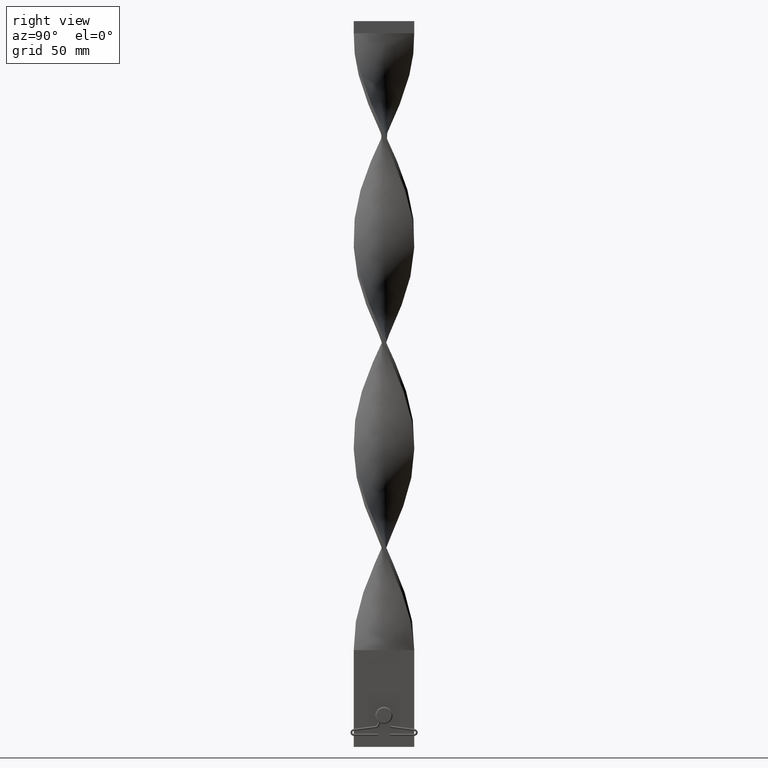
[diagram: clean part render]
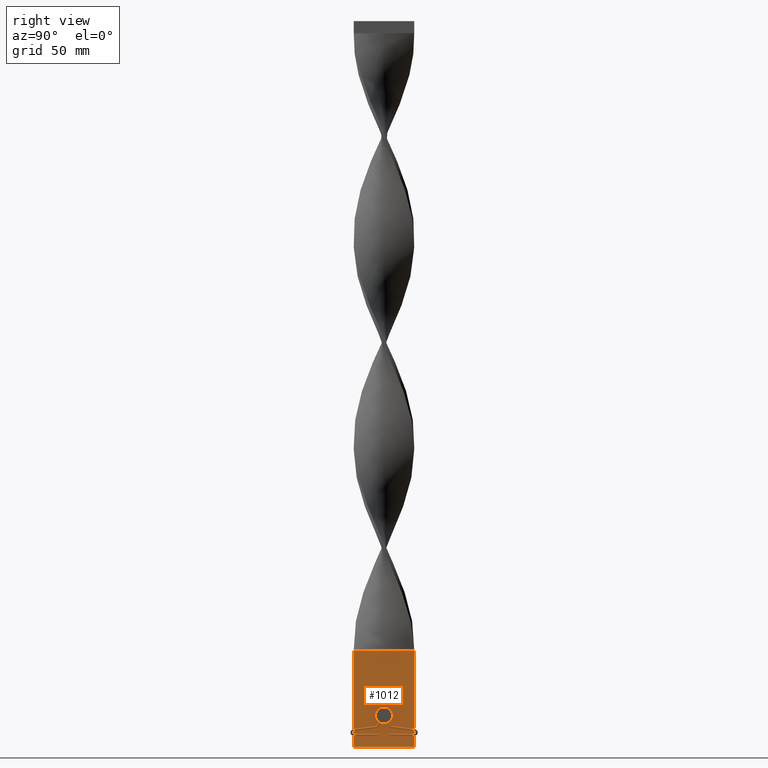
[diagram: same view with one face highlighted and labeled with its STEP entity id]
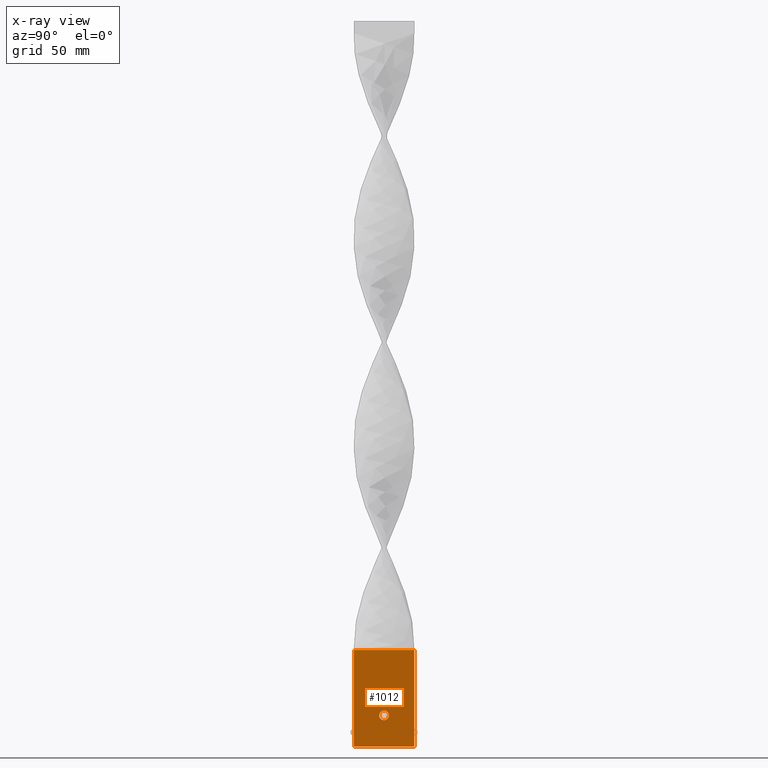
[diagram: x-ray of the same camera — body ghosted, the highlighted face saturated]
A machine part, right view. The second image highlights one B-rep face of the part: STEP entity #1012.
The next image is the same camera in x-ray: the body ghosted, the highlighted face saturated — about 0% of this face is hidden behind the body in this view.
In plain terms, the highlighted planar face has unit normal (1, 0, -0).
Its self-contained STEP definition (entity closure, byte-faithful):
#146 = DIRECTION ( 'NONE',  ( 1.000000000000000000, 3.794707603699264533E-16, 0.000000000000000000 ) ) ;
#166 = AXIS2_PLACEMENT_3D ( 'NONE', #2038, #2057, #3877 ) ;
#208 = CARTESIAN_POINT ( 'NONE',  ( 0.7500000000000015543, -12.50000000000000000, 40.00000000000000000 ) ) ;
#215 = ORIENTED_EDGE ( 'NONE', *, *, #722, .F. ) ;
#241 = FACE_BOUND ( 'NONE', #3339, .T. ) ;
#288 = DIRECTION ( 'NONE',  ( -1.214306433183764966E-16, 1.000000000000000000, 0.000000000000000000 ) ) ;
#297 = EDGE_CURVE ( 'NONE', #3213, #1531, #4074, .T. ) ;
#316 = FACE_OUTER_BOUND ( 'NONE', #4346, .T. ) ;
#321 = CARTESIAN_POINT ( 'NONE',  ( 0.7500000000000007772, -1.999999999999999556, 13.00000000000000000 ) ) ;
#401 = CARTESIAN_POINT ( 'NONE',  ( 0.7499999999999984457, 12.49999999999999822, 40.00000000000000000 ) ) ;
#433 = ORIENTED_EDGE ( 'NONE', *, *, #2833, .F. ) ;
#506 = CARTESIAN_POINT ( 'NONE',  ( 0.7500000000000000000, 9.107298248878236013E-17, 13.00000000000000000 ) ) ;
#620 = PLANE ( 'NONE',  #3763 ) ;
#661 = VERTEX_POINT ( 'NONE', #321 ) ;
#722 = EDGE_CURVE ( 'NONE', #661, #2828, #2836, .T. ) ;
#830 = CARTESIAN_POINT ( 'NONE',  ( 0.7499999999999984457, 12.49999999999999822, 0.000000000000000000 ) ) ;
#913 = VECTOR ( 'NONE', #1187, 1000.000000000000000 ) ;
#1003 = ORIENTED_EDGE ( 'NONE', *, *, #3498, .F. ) ;
#1012 = ADVANCED_FACE ( 'NONE', ( #241, #316 ), #620, .T. ) ;
#1187 = DIRECTION ( 'NONE',  ( 1.214306433183764966E-16, -1.000000000000000000, 0.000000000000000000 ) ) ;
#1231 = ORIENTED_EDGE ( 'NONE', *, *, #1370, .F. ) ;
#1338 = EDGE_CURVE ( 'NONE', #1531, #2157, #2815, .T. ) ;
#1368 = CARTESIAN_POINT ( 'NONE',  ( 0.7499999999999984457, 12.49999999999999822, 40.00000000000000000 ) ) ;
#1370 = EDGE_CURVE ( 'NONE', #3213, #4400, #3980, .T. ) ;
#1531 = VERTEX_POINT ( 'NONE', #208 ) ;
#1943 = LINE ( 'NONE', #2686, #913 ) ;
#2038 = CARTESIAN_POINT ( 'NONE',  ( 0.7500000000000000000, 9.107298248878236013E-17, 13.00000000000000000 ) ) ;
#2057 = DIRECTION ( 'NONE',  ( 1.000000000000000000, 3.794707603699264533E-16, 0.000000000000000000 ) ) ;
#2157 = VERTEX_POINT ( 'NONE', #3407 ) ;
#2191 = DIRECTION ( 'NONE',  ( -0.000000000000000000, -0.000000000000000000, -1.000000000000000000 ) ) ;
#2217 = CARTESIAN_POINT ( 'NONE',  ( 0.7499999999999984457, 12.49999999999999822, 40.00000000000000000 ) ) ;
#2252 = CIRCLE ( 'NONE', #166, 1.999999999999999556 ) ;
#2553 = VECTOR ( 'NONE', #4357, 1000.000000000000000 ) ;
#2604 = ORIENTED_EDGE ( 'NONE', *, *, #297, .T. ) ;
#2686 = CARTESIAN_POINT ( 'NONE',  ( 0.7499999999999984457, 12.49999999999999822, 0.000000000000000000 ) ) ;
#2765 = DIRECTION ( 'NONE',  ( -3.794707603699266505E-16, 1.000000000000000000, 0.000000000000000000 ) ) ;
#2815 = LINE ( 'NONE', #4676, #3459 ) ;
#2828 = VERTEX_POINT ( 'NONE', #4120 ) ;
#2833 = EDGE_CURVE ( 'NONE', #4400, #2157, #1943, .T. ) ;
#2836 = CIRCLE ( 'NONE', #3379, 1.999999999999999556 ) ;
#3213 = VERTEX_POINT ( 'NONE', #401 ) ;
#3339 = EDGE_LOOP ( 'NONE', ( #215, #1003 ) ) ;
#3379 = AXIS2_PLACEMENT_3D ( 'NONE', #506, #146, #2765 ) ;
#3407 = CARTESIAN_POINT ( 'NONE',  ( 0.7500000000000015543, -12.50000000000000000, 0.000000000000000000 ) ) ;
#3459 = VECTOR ( 'NONE', #2191, 1000.000000000000000 ) ;
#3498 = EDGE_CURVE ( 'NONE', #2828, #661, #2252, .T. ) ;
#3667 = DIRECTION ( 'NONE',  ( 1.214306433183764966E-16, -1.000000000000000000, 0.000000000000000000 ) ) ;
#3763 = AXIS2_PLACEMENT_3D ( 'NONE', #1368, #3948, #288 ) ;
#3877 = DIRECTION ( 'NONE',  ( -3.794707603699266505E-16, 1.000000000000000000, 0.000000000000000000 ) ) ;
#3948 = DIRECTION ( 'NONE',  ( 1.000000000000000000, 1.214306433183764966E-16, -0.000000000000000000 ) ) ;
#3980 = LINE ( 'NONE', #4749, #2553 ) ;
#4074 = LINE ( 'NONE', #2217, #4686 ) ;
#4120 = CARTESIAN_POINT ( 'NONE',  ( 0.7499999999999992228, 1.999999999999999556, 13.00000000000000000 ) ) ;
#4281 = ORIENTED_EDGE ( 'NONE', *, *, #1338, .T. ) ;
#4346 = EDGE_LOOP ( 'NONE', ( #433, #1231, #2604, #4281 ) ) ;
#4357 = DIRECTION ( 'NONE',  ( -0.000000000000000000, -0.000000000000000000, -1.000000000000000000 ) ) ;
#4400 = VERTEX_POINT ( 'NONE', #830 ) ;
#4676 = CARTESIAN_POINT ( 'NONE',  ( 0.7500000000000015543, -12.50000000000000000, 40.00000000000000000 ) ) ;
#4686 = VECTOR ( 'NONE', #3667, 1000.000000000000000 ) ;
#4749 = CARTESIAN_POINT ( 'NONE',  ( 0.7499999999999984457, 12.49999999999999822, 40.00000000000000000 ) ) ;